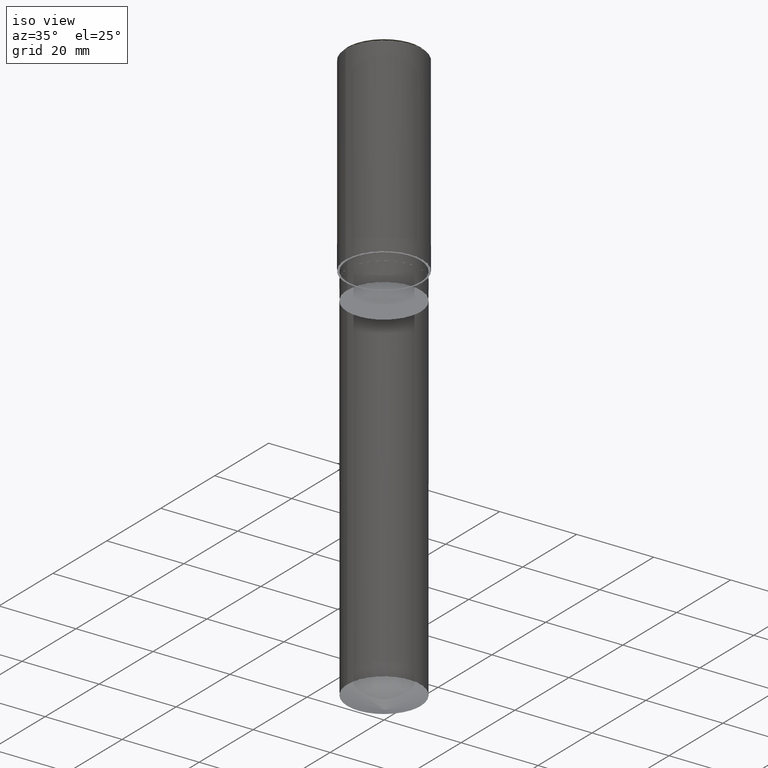
[diagram: clean part render]
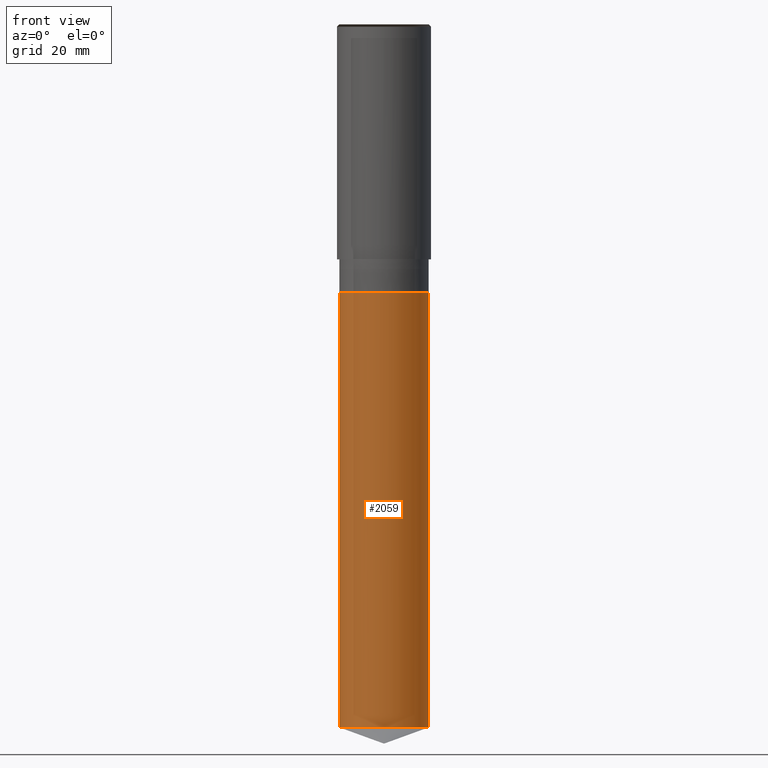
[diagram: tour spotlight — one face highlighted and labeled with its STEP entity id]
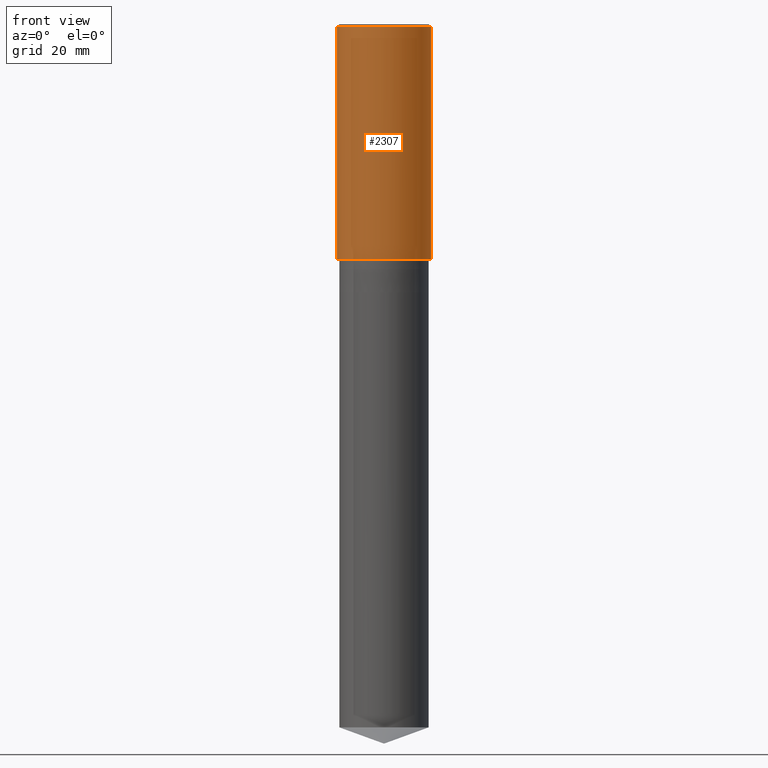
[diagram: tour spotlight — one face highlighted and labeled with its STEP entity id]
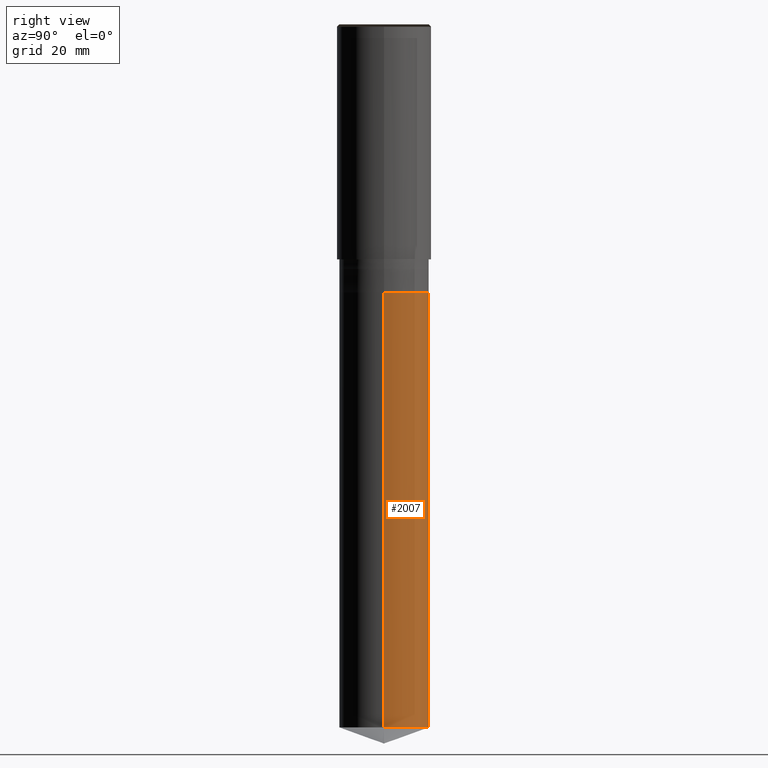
[diagram: tour spotlight — one face highlighted and labeled with its STEP entity id]
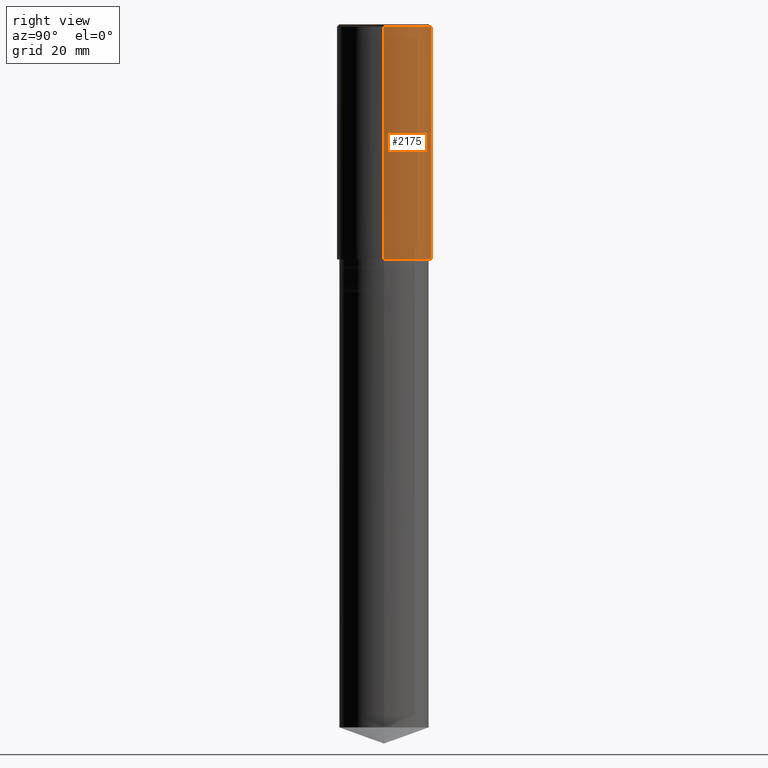
[diagram: tour spotlight — one face highlighted and labeled with its STEP entity id]
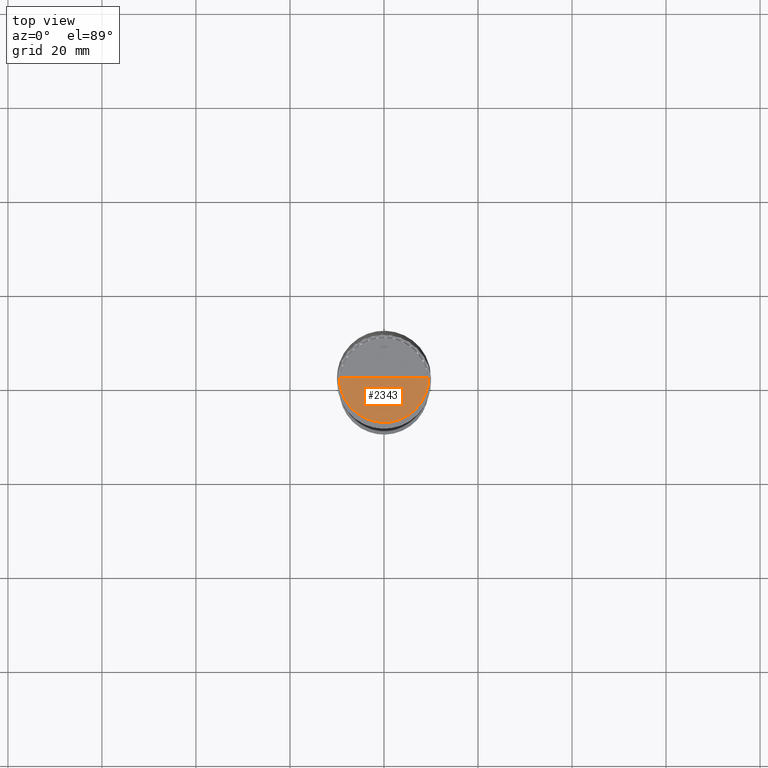
[diagram: tour spotlight — one face highlighted and labeled with its STEP entity id]
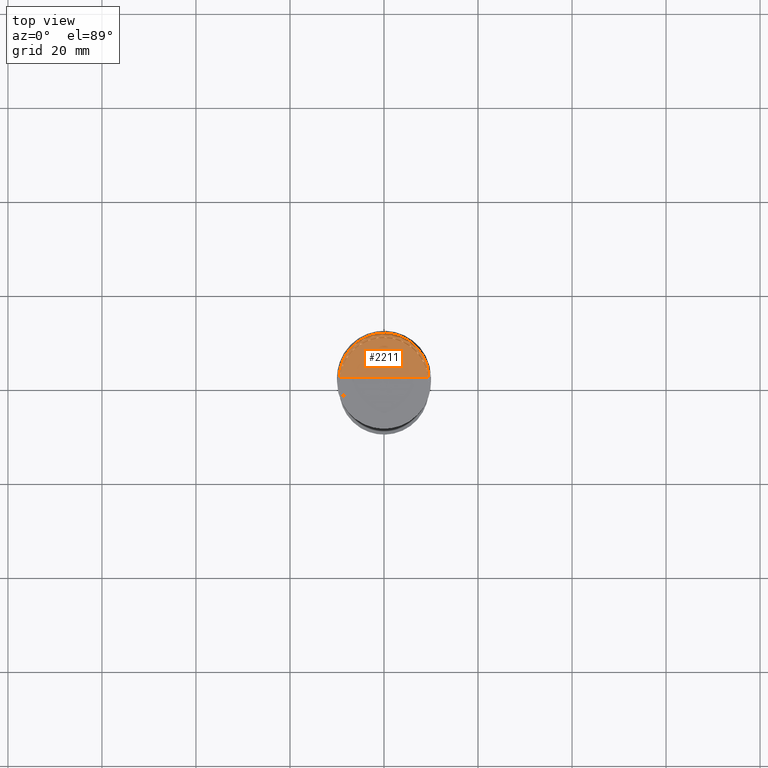
[diagram: tour spotlight — one face highlighted and labeled with its STEP entity id]
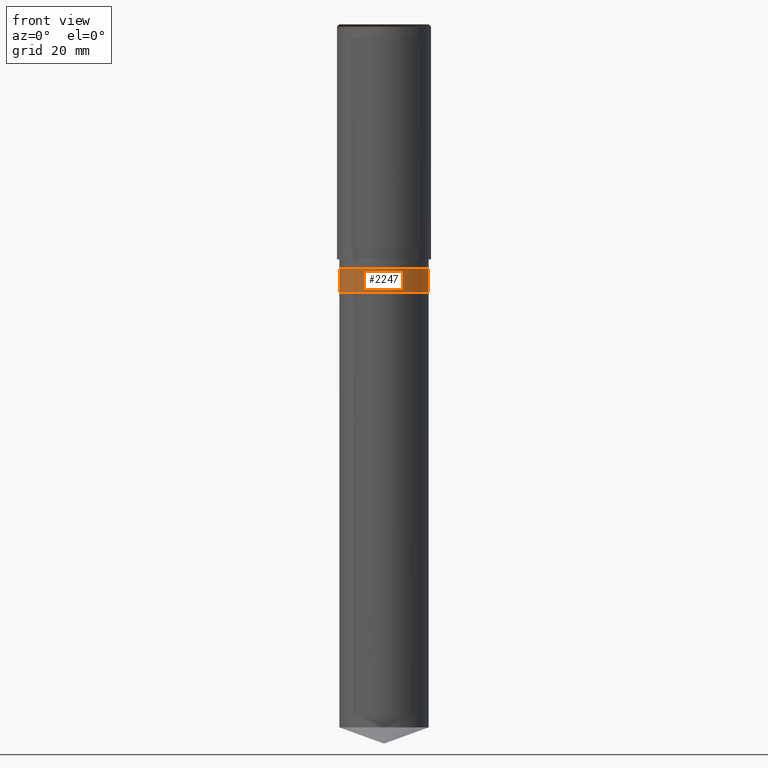
[diagram: tour spotlight — one face highlighted and labeled with its STEP entity id]
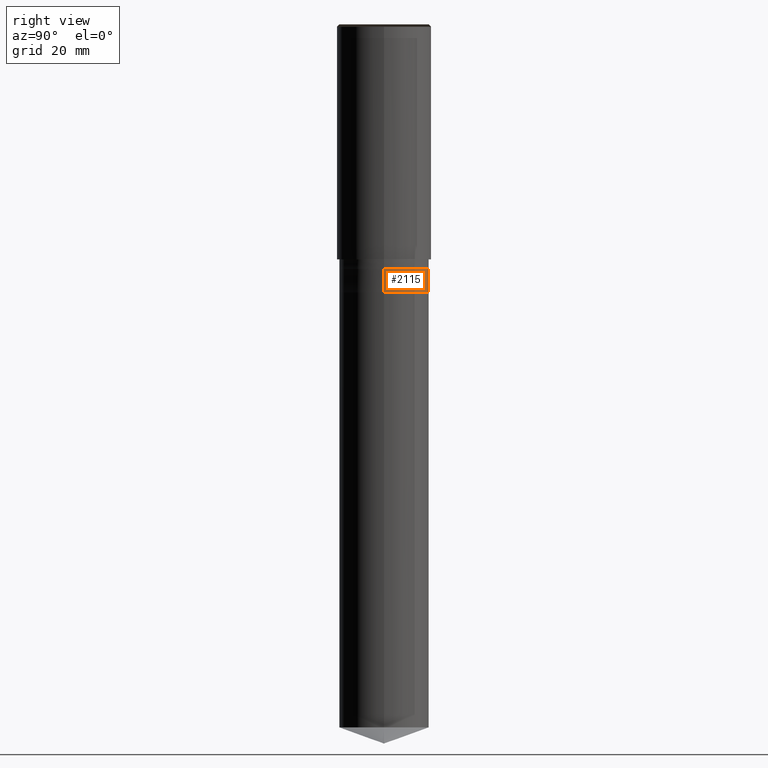
[diagram: tour spotlight — one face highlighted and labeled with its STEP entity id]
A machine part: a face-by-face anatomy tour. The part has 20 B-rep faces; the first image is the clean iso view, then the 8 largest visible faces are spotlighted one at a time (largest first), each with its STEP entity span.

Face 1 — front view, entity #2059. In plain terms, the highlighted face is a freeform B-spline surface patch.
Definition (entity closure, byte-faithful):
#1909=CARTESIAN_POINT('',(9.5,0.0,-99.542282774471));
#1913=CARTESIAN_POINT('',(-9.5,0.0,-99.542282774471));
#1914=CARTESIAN_POINT('',(9.5,0.0,-7.0));
#1918=CARTESIAN_POINT('',(-9.5,0.0,-7.0));
#1920=CARTESIAN_POINT('',(-9.5,-9.5,-99.542282774471));
#1921=CARTESIAN_POINT('',(0.0,-9.5,-99.542282774471));
#1922=CARTESIAN_POINT('',(9.5,-9.5,-99.542282774471));
#1923=CARTESIAN_POINT('',(-9.5,-9.5,-7.0));
#1924=CARTESIAN_POINT('',(0.0,-9.5,-7.0));
#1925=CARTESIAN_POINT('',(9.5,-9.5,-7.0));
#2040=(
BOUNDED_SURFACE()
B_SPLINE_SURFACE(1,2,(
(#1913,#1920,#1921,#1922,#1909),
(#1918,#1923,#1924,#1925,#1914)
), .UNSPECIFIED.,.F.,.F.,.F.)
B_SPLINE_SURFACE_WITH_KNOTS((2,2),(3,2,3),(
0.0,1.0),(
0.0,0.5,1.0), .UNSPECIFIED.)
GEOMETRIC_REPRESENTATION_ITEM()
RATIONAL_B_SPLINE_SURFACE(((1.0,0.707106781187,1.0,0.707106781187,1.0),
(1.0,0.707106781187,1.0,0.707106781187,1.0)
))
REPRESENTATION_ITEM('')
SURFACE()
);
#2041=(
BOUNDED_CURVE()
B_SPLINE_CURVE(2,(#1909,#1922,#1921,#1920,#1913),.UNSPECIFIED.,.F.,.F.)
B_SPLINE_CURVE_WITH_KNOTS((3,2,3),
(0.0,0.5,1.0),.UNSPECIFIED.)
CURVE()
GEOMETRIC_REPRESENTATION_ITEM()
RATIONAL_B_SPLINE_CURVE((1.0,0.707106781187,1.0,0.707106781187,1.0))
REPRESENTATION_ITEM('')
);
#2042=(
BOUNDED_CURVE()
B_SPLINE_CURVE(1,(#1913,#1918),.UNSPECIFIED.,.F.,.F.)
B_SPLINE_CURVE_WITH_KNOTS((2,2),
(0.0,1.0),.UNSPECIFIED.)
CURVE()
GEOMETRIC_REPRESENTATION_ITEM()
RATIONAL_B_SPLINE_CURVE((1.0,1.0))
REPRESENTATION_ITEM('')
);
#2043=(
BOUNDED_CURVE()
B_SPLINE_CURVE(2,(#1918,#1923,#1924,#1925,#1914),.UNSPECIFIED.,.F.,.F.)
B_SPLINE_CURVE_WITH_KNOTS((3,2,3),
(0.0,0.5,1.0),.UNSPECIFIED.)
CURVE()
GEOMETRIC_REPRESENTATION_ITEM()
RATIONAL_B_SPLINE_CURVE((1.0,0.707106781187,1.0,0.707106781187,1.0))
REPRESENTATION_ITEM('')
);
#2044=(
BOUNDED_CURVE()
B_SPLINE_CURVE(1,(#1914,#1909),.UNSPECIFIED.,.F.,.F.)
B_SPLINE_CURVE_WITH_KNOTS((2,2),
(0.0,1.0),.UNSPECIFIED.)
CURVE()
GEOMETRIC_REPRESENTATION_ITEM()
RATIONAL_B_SPLINE_CURVE((1.0,1.0))
REPRESENTATION_ITEM('')
);
#2045=VERTEX_POINT('',#1909);
#2046=VERTEX_POINT('',#1913);
#2047=VERTEX_POINT('',#1914);
#2048=VERTEX_POINT('',#1918);
#2049=EDGE_CURVE('',#2045,#2046,#2041,.T.);
#2050=EDGE_CURVE('',#2046,#2048,#2042,.T.);
#2051=EDGE_CURVE('',#2048,#2047,#2043,.T.);
#2052=EDGE_CURVE('',#2047,#2045,#2044,.T.);
#2053=ORIENTED_EDGE('',*,*,#2049,.T.);
#2054=ORIENTED_EDGE('',*,*,#2050,.T.);
#2055=ORIENTED_EDGE('',*,*,#2051,.T.);
#2056=ORIENTED_EDGE('',*,*,#2052,.T.);
#2057=EDGE_LOOP('',(#2053,#2054,#2055,#2056));
#2058=FACE_OUTER_BOUND('',#2057,.T.);
#2059=ADVANCED_FACE('',(#2058),#2040,.T.);

Face 2 — front view, entity #2307. In plain terms, the highlighted face is a freeform B-spline surface patch.
Definition (entity closure, byte-faithful):
#1936=CARTESIAN_POINT('',(10.0,0.0,0.0));
#1940=CARTESIAN_POINT('',(-10.0,0.0,0.0));
#1941=CARTESIAN_POINT('',(10.0,0.0,49.5));
#1945=CARTESIAN_POINT('',(-10.0,0.0,49.5));
#1958=CARTESIAN_POINT('',(-10.0,-10.0,0.0));
#1959=CARTESIAN_POINT('',(0.0,-10.0,0.0));
#1960=CARTESIAN_POINT('',(10.0,-10.0,0.0));
#1961=CARTESIAN_POINT('',(-10.0,-10.0,49.5));
#1962=CARTESIAN_POINT('',(0.0,-10.0,49.5));
#1963=CARTESIAN_POINT('',(10.0,-10.0,49.5));
#2288=(
BOUNDED_SURFACE()
B_SPLINE_SURFACE(1,2,(
(#1940,#1958,#1959,#1960,#1936),
(#1945,#1961,#1962,#1963,#1941)
), .UNSPECIFIED.,.F.,.F.,.F.)
B_SPLINE_SURFACE_WITH_KNOTS((2,2),(3,2,3),(
0.0,1.0),(
0.0,0.5,1.0), .UNSPECIFIED.)
GEOMETRIC_REPRESENTATION_ITEM()
RATIONAL_B_SPLINE_SURFACE(((1.0,0.707106781187,1.0,0.707106781187,1.0),
(1.0,0.707106781187,1.0,0.707106781187,1.0)
))
REPRESENTATION_ITEM('')
SURFACE()
);
#2289=(
BOUNDED_CURVE()
B_SPLINE_CURVE(2,(#1936,#1960,#1959,#1958,#1940),.UNSPECIFIED.,.F.,.F.)
B_SPLINE_CURVE_WITH_KNOTS((3,2,3),
(0.0,0.5,1.0),.UNSPECIFIED.)
CURVE()
GEOMETRIC_REPRESENTATION_ITEM()
RATIONAL_B_SPLINE_CURVE((1.0,0.707106781187,1.0,0.707106781187,1.0))
REPRESENTATION_ITEM('')
);
#2290=(
BOUNDED_CURVE()
B_SPLINE_CURVE(1,(#1940,#1945),.UNSPECIFIED.,.F.,.F.)
B_SPLINE_CURVE_WITH_KNOTS((2,2),
(0.0,1.0),.UNSPECIFIED.)
CURVE()
GEOMETRIC_REPRESENTATION_ITEM()
RATIONAL_B_SPLINE_CURVE((1.0,1.0))
REPRESENTATION_ITEM('')
);
#2291=(
BOUNDED_CURVE()
B_SPLINE_CURVE(2,(#1945,#1961,#1962,#1963,#1941),.UNSPECIFIED.,.F.,.F.)
B_SPLINE_CURVE_WITH_KNOTS((3,2,3),
(0.0,0.5,1.0),.UNSPECIFIED.)
CURVE()
GEOMETRIC_REPRESENTATION_ITEM()
RATIONAL_B_SPLINE_CURVE((1.0,0.707106781187,1.0,0.707106781187,1.0))
REPRESENTATION_ITEM('')
);
#2292=(
BOUNDED_CURVE()
B_SPLINE_CURVE(1,(#1941,#1936),.UNSPECIFIED.,.F.,.F.)
B_SPLINE_CURVE_WITH_KNOTS((2,2),
(0.0,1.0),.UNSPECIFIED.)
CURVE()
GEOMETRIC_REPRESENTATION_ITEM()
RATIONAL_B_SPLINE_CURVE((1.0,1.0))
REPRESENTATION_ITEM('')
);
#2293=VERTEX_POINT('',#1936);
#2294=VERTEX_POINT('',#1940);
#2295=VERTEX_POINT('',#1941);
#2296=VERTEX_POINT('',#1945);
#2297=EDGE_CURVE('',#2293,#2294,#2289,.T.);
#2298=EDGE_CURVE('',#2294,#2296,#2290,.T.);
#2299=EDGE_CURVE('',#2296,#2295,#2291,.T.);
#2300=EDGE_CURVE('',#2295,#2293,#2292,.T.);
#2301=ORIENTED_EDGE('',*,*,#2297,.T.);
#2302=ORIENTED_EDGE('',*,*,#2298,.T.);
#2303=ORIENTED_EDGE('',*,*,#2299,.T.);
#2304=ORIENTED_EDGE('',*,*,#2300,.T.);
#2305=EDGE_LOOP('',(#2301,#2302,#2303,#2304));
#2306=FACE_OUTER_BOUND('',#2305,.T.);
#2307=ADVANCED_FACE('',(#2306),#2288,.T.);

Face 3 — right view, entity #2007. In plain terms, the highlighted face is a freeform B-spline surface patch.
Definition (entity closure, byte-faithful):
#1909=CARTESIAN_POINT('',(9.5,0.0,-99.542282774471));
#1910=CARTESIAN_POINT('',(9.5,9.5,-99.542282774471));
#1911=CARTESIAN_POINT('',(0.0,9.5,-99.542282774471));
#1912=CARTESIAN_POINT('',(-9.5,9.5,-99.542282774471));
#1913=CARTESIAN_POINT('',(-9.5,0.0,-99.542282774471));
#1914=CARTESIAN_POINT('',(9.5,0.0,-7.0));
#1915=CARTESIAN_POINT('',(9.5,9.5,-7.0));
#1916=CARTESIAN_POINT('',(0.0,9.5,-7.0));
#1917=CARTESIAN_POINT('',(-9.5,9.5,-7.0));
#1918=CARTESIAN_POINT('',(-9.5,0.0,-7.0));
#1988=(
BOUNDED_SURFACE()
B_SPLINE_SURFACE(1,2,(
(#1909,#1910,#1911,#1912,#1913),
(#1914,#1915,#1916,#1917,#1918)
), .UNSPECIFIED.,.F.,.F.,.F.)
B_SPLINE_SURFACE_WITH_KNOTS((2,2),(3,2,3),(
0.0,1.0),(
0.0,0.5,1.0), .UNSPECIFIED.)
GEOMETRIC_REPRESENTATION_ITEM()
RATIONAL_B_SPLINE_SURFACE(((1.0,0.707106781187,1.0,0.707106781187,1.0),
(1.0,0.707106781187,1.0,0.707106781187,1.0)
))
REPRESENTATION_ITEM('')
SURFACE()
);
#1989=(
BOUNDED_CURVE()
B_SPLINE_CURVE(2,(#1913,#1912,#1911,#1910,#1909),.UNSPECIFIED.,.F.,.F.)
B_SPLINE_CURVE_WITH_KNOTS((3,2,3),
(0.0,0.5,1.0),.UNSPECIFIED.)
CURVE()
GEOMETRIC_REPRESENTATION_ITEM()
RATIONAL_B_SPLINE_CURVE((1.0,0.707106781187,1.0,0.707106781187,1.0))
REPRESENTATION_ITEM('')
);
#1990=(
BOUNDED_CURVE()
B_SPLINE_CURVE(1,(#1909,#1914),.UNSPECIFIED.,.F.,.F.)
B_SPLINE_CURVE_WITH_KNOTS((2,2),
(0.0,1.0),.UNSPECIFIED.)
CURVE()
GEOMETRIC_REPRESENTATION_ITEM()
RATIONAL_B_SPLINE_CURVE((1.0,1.0))
REPRESENTATION_ITEM('')
);
#1991=(
BOUNDED_CURVE()
B_SPLINE_CURVE(2,(#1914,#1915,#1916,#1917,#1918),.UNSPECIFIED.,.F.,.F.)
B_SPLINE_CURVE_WITH_KNOTS((3,2,3),
(0.0,0.5,1.0),.UNSPECIFIED.)
CURVE()
GEOMETRIC_REPRESENTATION_ITEM()
RATIONAL_B_SPLINE_CURVE((1.0,0.707106781187,1.0,0.707106781187,1.0))
REPRESENTATION_ITEM('')
);
#1992=(
BOUNDED_CURVE()
B_SPLINE_CURVE(1,(#1918,#1913),.UNSPECIFIED.,.F.,.F.)
B_SPLINE_CURVE_WITH_KNOTS((2,2),
(0.0,1.0),.UNSPECIFIED.)
CURVE()
GEOMETRIC_REPRESENTATION_ITEM()
RATIONAL_B_SPLINE_CURVE((1.0,1.0))
REPRESENTATION_ITEM('')
);
#1993=VERTEX_POINT('',#1909);
#1994=VERTEX_POINT('',#1913);
#1995=VERTEX_POINT('',#1914);
#1996=VERTEX_POINT('',#1918);
#1997=EDGE_CURVE('',#1994,#1993,#1989,.T.);
#1998=EDGE_CURVE('',#1993,#1995,#1990,.T.);
#1999=EDGE_CURVE('',#1995,#1996,#1991,.T.);
#2000=EDGE_CURVE('',#1996,#1994,#1992,.T.);
#2001=ORIENTED_EDGE('',*,*,#1997,.T.);
#2002=ORIENTED_EDGE('',*,*,#1998,.T.);
#2003=ORIENTED_EDGE('',*,*,#1999,.T.);
#2004=ORIENTED_EDGE('',*,*,#2000,.T.);
#2005=EDGE_LOOP('',(#2001,#2002,#2003,#2004));
#2006=FACE_OUTER_BOUND('',#2005,.T.);
#2007=ADVANCED_FACE('',(#2006),#1988,.T.);

Face 4 — right view, entity #2175. In plain terms, the highlighted face is a freeform B-spline surface patch.
Definition (entity closure, byte-faithful):
#1936=CARTESIAN_POINT('',(10.0,0.0,0.0));
#1937=CARTESIAN_POINT('',(10.0,10.0,0.0));
#1938=CARTESIAN_POINT('',(0.0,10.0,0.0));
#1939=CARTESIAN_POINT('',(-10.0,10.0,0.0));
#1940=CARTESIAN_POINT('',(-10.0,0.0,0.0));
#1941=CARTESIAN_POINT('',(10.0,0.0,49.5));
#1942=CARTESIAN_POINT('',(10.0,10.0,49.5));
#1943=CARTESIAN_POINT('',(0.0,10.0,49.5));
#1944=CARTESIAN_POINT('',(-10.0,10.0,49.5));
#1945=CARTESIAN_POINT('',(-10.0,0.0,49.5));
#2156=(
BOUNDED_SURFACE()
B_SPLINE_SURFACE(1,2,(
(#1936,#1937,#1938,#1939,#1940),
(#1941,#1942,#1943,#1944,#1945)
), .UNSPECIFIED.,.F.,.F.,.F.)
B_SPLINE_SURFACE_WITH_KNOTS((2,2),(3,2,3),(
0.0,1.0),(
0.0,0.5,1.0), .UNSPECIFIED.)
GEOMETRIC_REPRESENTATION_ITEM()
RATIONAL_B_SPLINE_SURFACE(((1.0,0.707106781187,1.0,0.707106781187,1.0),
(1.0,0.707106781187,1.0,0.707106781187,1.0)
))
REPRESENTATION_ITEM('')
SURFACE()
);
#2157=(
BOUNDED_CURVE()
B_SPLINE_CURVE(2,(#1940,#1939,#1938,#1937,#1936),.UNSPECIFIED.,.F.,.F.)
B_SPLINE_CURVE_WITH_KNOTS((3,2,3),
(0.0,0.5,1.0),.UNSPECIFIED.)
CURVE()
GEOMETRIC_REPRESENTATION_ITEM()
RATIONAL_B_SPLINE_CURVE((1.0,0.707106781187,1.0,0.707106781187,1.0))
REPRESENTATION_ITEM('')
);
#2158=(
BOUNDED_CURVE()
B_SPLINE_CURVE(1,(#1936,#1941),.UNSPECIFIED.,.F.,.F.)
B_SPLINE_CURVE_WITH_KNOTS((2,2),
(0.0,1.0),.UNSPECIFIED.)
CURVE()
GEOMETRIC_REPRESENTATION_ITEM()
RATIONAL_B_SPLINE_CURVE((1.0,1.0))
REPRESENTATION_ITEM('')
);
#2159=(
BOUNDED_CURVE()
B_SPLINE_CURVE(2,(#1941,#1942,#1943,#1944,#1945),.UNSPECIFIED.,.F.,.F.)
B_SPLINE_CURVE_WITH_KNOTS((3,2,3),
(0.0,0.5,1.0),.UNSPECIFIED.)
CURVE()
GEOMETRIC_REPRESENTATION_ITEM()
RATIONAL_B_SPLINE_CURVE((1.0,0.707106781187,1.0,0.707106781187,1.0))
REPRESENTATION_ITEM('')
);
#2160=(
BOUNDED_CURVE()
B_SPLINE_CURVE(1,(#1945,#1940),.UNSPECIFIED.,.F.,.F.)
B_SPLINE_CURVE_WITH_KNOTS((2,2),
(0.0,1.0),.UNSPECIFIED.)
CURVE()
GEOMETRIC_REPRESENTATION_ITEM()
RATIONAL_B_SPLINE_CURVE((1.0,1.0))
REPRESENTATION_ITEM('')
);
#2161=VERTEX_POINT('',#1936);
#2162=VERTEX_POINT('',#1940);
#2163=VERTEX_POINT('',#1941);
#2164=VERTEX_POINT('',#1945);
#2165=EDGE_CURVE('',#2162,#2161,#2157,.T.);
#2166=EDGE_CURVE('',#2161,#2163,#2158,.T.);
#2167=EDGE_CURVE('',#2163,#2164,#2159,.T.);
#2168=EDGE_CURVE('',#2164,#2162,#2160,.T.);
#2169=ORIENTED_EDGE('',*,*,#2165,.T.);
#2170=ORIENTED_EDGE('',*,*,#2166,.T.);
#2171=ORIENTED_EDGE('',*,*,#2167,.T.);
#2172=ORIENTED_EDGE('',*,*,#2168,.T.);
#2173=EDGE_LOOP('',(#2169,#2170,#2171,#2172));
#2174=FACE_OUTER_BOUND('',#2173,.T.);
#2175=ADVANCED_FACE('',(#2174),#2156,.T.);

Face 5 — top view, entity #2343. In plain terms, the highlighted face is a freeform B-spline surface patch.
Definition (entity closure, byte-faithful):
#1946=CARTESIAN_POINT('',(9.5,0.0,50.0));
#1950=CARTESIAN_POINT('',(-9.5,0.0,50.0));
#1951=CARTESIAN_POINT('',(0.0,0.0,50.0));
#1964=CARTESIAN_POINT('',(-9.5,-9.5,50.0));
#1965=CARTESIAN_POINT('',(0.0,-9.5,50.0));
#1966=CARTESIAN_POINT('',(9.5,-9.5,50.0));
#2328=(
BOUNDED_SURFACE()
B_SPLINE_SURFACE(1,2,(
(#1950,#1964,#1965,#1966,#1946),
(#1951,#1951,#1951,#1951,#1951)
), .UNSPECIFIED.,.F.,.F.,.F.)
B_SPLINE_SURFACE_WITH_KNOTS((2,2),(3,2,3),(
0.0,1.0),(
0.0,0.5,1.0), .UNSPECIFIED.)
GEOMETRIC_REPRESENTATION_ITEM()
RATIONAL_B_SPLINE_SURFACE(((1.0,0.707106781187,1.0,0.707106781187,1.0),
(1.0,0.707106781187,1.0,0.707106781187,1.0)
))
REPRESENTATION_ITEM('')
SURFACE()
);
#2329=(
BOUNDED_CURVE()
B_SPLINE_CURVE(2,(#1946,#1966,#1965,#1964,#1950),.UNSPECIFIED.,.F.,.F.)
B_SPLINE_CURVE_WITH_KNOTS((3,2,3),
(0.0,0.5,1.0),.UNSPECIFIED.)
CURVE()
GEOMETRIC_REPRESENTATION_ITEM()
RATIONAL_B_SPLINE_CURVE((1.0,0.707106781187,1.0,0.707106781187,1.0))
REPRESENTATION_ITEM('')
);
#2330=(
BOUNDED_CURVE()
B_SPLINE_CURVE(1,(#1950,#1951),.UNSPECIFIED.,.F.,.F.)
B_SPLINE_CURVE_WITH_KNOTS((2,2),
(0.0,1.0),.UNSPECIFIED.)
CURVE()
GEOMETRIC_REPRESENTATION_ITEM()
RATIONAL_B_SPLINE_CURVE((1.0,1.0))
REPRESENTATION_ITEM('')
);
#2331=(
BOUNDED_CURVE()
B_SPLINE_CURVE(1,(#1951,#1946),.UNSPECIFIED.,.F.,.F.)
B_SPLINE_CURVE_WITH_KNOTS((2,2),
(0.0,1.0),.UNSPECIFIED.)
CURVE()
GEOMETRIC_REPRESENTATION_ITEM()
RATIONAL_B_SPLINE_CURVE((1.0,1.0))
REPRESENTATION_ITEM('')
);
#2332=VERTEX_POINT('',#1946);
#2333=VERTEX_POINT('',#1950);
#2334=VERTEX_POINT('',#1951);
#2335=EDGE_CURVE('',#2332,#2333,#2329,.T.);
#2336=EDGE_CURVE('',#2333,#2334,#2330,.T.);
#2337=EDGE_CURVE('',#2334,#2332,#2331,.T.);
#2338=ORIENTED_EDGE('',*,*,#2335,.T.);
#2339=ORIENTED_EDGE('',*,*,#2336,.T.);
#2340=ORIENTED_EDGE('',*,*,#2337,.T.);
#2341=EDGE_LOOP('',(#2338,#2339,#2340));
#2342=FACE_OUTER_BOUND('',#2341,.T.);
#2343=ADVANCED_FACE('',(#2342),#2328,.T.);

Face 6 — top view, entity #2211. In plain terms, the highlighted face is a freeform B-spline surface patch.
Definition (entity closure, byte-faithful):
#1946=CARTESIAN_POINT('',(9.5,0.0,50.0));
#1947=CARTESIAN_POINT('',(9.5,9.5,50.0));
#1948=CARTESIAN_POINT('',(0.0,9.5,50.0));
#1949=CARTESIAN_POINT('',(-9.5,9.5,50.0));
#1950=CARTESIAN_POINT('',(-9.5,0.0,50.0));
#1951=CARTESIAN_POINT('',(0.0,0.0,50.0));
#2196=(
BOUNDED_SURFACE()
B_SPLINE_SURFACE(1,2,(
(#1946,#1947,#1948,#1949,#1950),
(#1951,#1951,#1951,#1951,#1951)
), .UNSPECIFIED.,.F.,.F.,.F.)
B_SPLINE_SURFACE_WITH_KNOTS((2,2),(3,2,3),(
0.0,1.0),(
0.0,0.5,1.0), .UNSPECIFIED.)
GEOMETRIC_REPRESENTATION_ITEM()
RATIONAL_B_SPLINE_SURFACE(((1.0,0.707106781187,1.0,0.707106781187,1.0),
(1.0,0.707106781187,1.0,0.707106781187,1.0)
))
REPRESENTATION_ITEM('')
SURFACE()
);
#2197=(
BOUNDED_CURVE()
B_SPLINE_CURVE(2,(#1950,#1949,#1948,#1947,#1946),.UNSPECIFIED.,.F.,.F.)
B_SPLINE_CURVE_WITH_KNOTS((3,2,3),
(0.0,0.5,1.0),.UNSPECIFIED.)
CURVE()
GEOMETRIC_REPRESENTATION_ITEM()
RATIONAL_B_SPLINE_CURVE((1.0,0.707106781187,1.0,0.707106781187,1.0))
REPRESENTATION_ITEM('')
);
#2198=(
BOUNDED_CURVE()
B_SPLINE_CURVE(1,(#1946,#1951),.UNSPECIFIED.,.F.,.F.)
B_SPLINE_CURVE_WITH_KNOTS((2,2),
(0.0,1.0),.UNSPECIFIED.)
CURVE()
GEOMETRIC_REPRESENTATION_ITEM()
RATIONAL_B_SPLINE_CURVE((1.0,1.0))
REPRESENTATION_ITEM('')
);
#2199=(
BOUNDED_CURVE()
B_SPLINE_CURVE(1,(#1951,#1950),.UNSPECIFIED.,.F.,.F.)
B_SPLINE_CURVE_WITH_KNOTS((2,2),
(0.0,1.0),.UNSPECIFIED.)
CURVE()
GEOMETRIC_REPRESENTATION_ITEM()
RATIONAL_B_SPLINE_CURVE((1.0,1.0))
REPRESENTATION_ITEM('')
);
#2200=VERTEX_POINT('',#1946);
#2201=VERTEX_POINT('',#1950);
#2202=VERTEX_POINT('',#1951);
#2203=EDGE_CURVE('',#2201,#2200,#2197,.T.);
#2204=EDGE_CURVE('',#2200,#2202,#2198,.T.);
#2205=EDGE_CURVE('',#2202,#2201,#2199,.T.);
#2206=ORIENTED_EDGE('',*,*,#2203,.T.);
#2207=ORIENTED_EDGE('',*,*,#2204,.T.);
#2208=ORIENTED_EDGE('',*,*,#2205,.T.);
#2209=EDGE_LOOP('',(#2206,#2207,#2208));
#2210=FACE_OUTER_BOUND('',#2209,.T.);
#2211=ADVANCED_FACE('',(#2210),#2196,.T.);

Face 7 — front view, entity #2247. In plain terms, the highlighted face is a freeform B-spline surface patch.
Definition (entity closure, byte-faithful):
#1914=CARTESIAN_POINT('',(9.5,0.0,-7.0));
#1918=CARTESIAN_POINT('',(-9.5,0.0,-7.0));
#1923=CARTESIAN_POINT('',(-9.5,-9.5,-7.0));
#1924=CARTESIAN_POINT('',(0.0,-9.5,-7.0));
#1925=CARTESIAN_POINT('',(9.5,-9.5,-7.0));
#1926=CARTESIAN_POINT('',(9.5,0.0,-2.0));
#1930=CARTESIAN_POINT('',(-9.5,0.0,-2.0));
#1952=CARTESIAN_POINT('',(-9.5,-9.5,-2.0));
#1953=CARTESIAN_POINT('',(0.0,-9.5,-2.0));
#1954=CARTESIAN_POINT('',(9.5,-9.5,-2.0));
#2228=(
BOUNDED_SURFACE()
B_SPLINE_SURFACE(1,2,(
(#1918,#1923,#1924,#1925,#1914),
(#1930,#1952,#1953,#1954,#1926)
), .UNSPECIFIED.,.F.,.F.,.F.)
B_SPLINE_SURFACE_WITH_KNOTS((2,2),(3,2,3),(
0.0,1.0),(
0.0,0.5,1.0), .UNSPECIFIED.)
GEOMETRIC_REPRESENTATION_ITEM()
RATIONAL_B_SPLINE_SURFACE(((1.0,0.707106781187,1.0,0.707106781187,1.0),
(1.0,0.707106781187,1.0,0.707106781187,1.0)
))
REPRESENTATION_ITEM('')
SURFACE()
);
#2229=(
BOUNDED_CURVE()
B_SPLINE_CURVE(2,(#1914,#1925,#1924,#1923,#1918),.UNSPECIFIED.,.F.,.F.)
B_SPLINE_CURVE_WITH_KNOTS((3,2,3),
(0.0,0.5,1.0),.UNSPECIFIED.)
CURVE()
GEOMETRIC_REPRESENTATION_ITEM()
RATIONAL_B_SPLINE_CURVE((1.0,0.707106781187,1.0,0.707106781187,1.0))
REPRESENTATION_ITEM('')
);
#2230=(
BOUNDED_CURVE()
B_SPLINE_CURVE(1,(#1918,#1930),.UNSPECIFIED.,.F.,.F.)
B_SPLINE_CURVE_WITH_KNOTS((2,2),
(0.0,1.0),.UNSPECIFIED.)
CURVE()
GEOMETRIC_REPRESENTATION_ITEM()
RATIONAL_B_SPLINE_CURVE((1.0,1.0))
REPRESENTATION_ITEM('')
);
#2231=(
BOUNDED_CURVE()
B_SPLINE_CURVE(2,(#1930,#1952,#1953,#1954,#1926),.UNSPECIFIED.,.F.,.F.)
B_SPLINE_CURVE_WITH_KNOTS((3,2,3),
(0.0,0.5,1.0),.UNSPECIFIED.)
CURVE()
GEOMETRIC_REPRESENTATION_ITEM()
RATIONAL_B_SPLINE_CURVE((1.0,0.707106781187,1.0,0.707106781187,1.0))
REPRESENTATION_ITEM('')
);
#2232=(
BOUNDED_CURVE()
B_SPLINE_CURVE(1,(#1926,#1914),.UNSPECIFIED.,.F.,.F.)
B_SPLINE_CURVE_WITH_KNOTS((2,2),
(0.0,1.0),.UNSPECIFIED.)
CURVE()
GEOMETRIC_REPRESENTATION_ITEM()
RATIONAL_B_SPLINE_CURVE((1.0,1.0))
REPRESENTATION_ITEM('')
);
#2233=VERTEX_POINT('',#1914);
#2234=VERTEX_POINT('',#1918);
#2235=VERTEX_POINT('',#1926);
#2236=VERTEX_POINT('',#1930);
#2237=EDGE_CURVE('',#2233,#2234,#2229,.T.);
#2238=EDGE_CURVE('',#2234,#2236,#2230,.T.);
#2239=EDGE_CURVE('',#2236,#2235,#2231,.T.);
#2240=EDGE_CURVE('',#2235,#2233,#2232,.T.);
#2241=ORIENTED_EDGE('',*,*,#2237,.T.);
#2242=ORIENTED_EDGE('',*,*,#2238,.T.);
#2243=ORIENTED_EDGE('',*,*,#2239,.T.);
#2244=ORIENTED_EDGE('',*,*,#2240,.T.);
#2245=EDGE_LOOP('',(#2241,#2242,#2243,#2244));
#2246=FACE_OUTER_BOUND('',#2245,.T.);
#2247=ADVANCED_FACE('',(#2246),#2228,.T.);

Face 8 — right view, entity #2115. In plain terms, the highlighted face is a freeform B-spline surface patch.
Definition (entity closure, byte-faithful):
#1914=CARTESIAN_POINT('',(9.5,0.0,-7.0));
#1915=CARTESIAN_POINT('',(9.5,9.5,-7.0));
#1916=CARTESIAN_POINT('',(0.0,9.5,-7.0));
#1917=CARTESIAN_POINT('',(-9.5,9.5,-7.0));
#1918=CARTESIAN_POINT('',(-9.5,0.0,-7.0));
#1926=CARTESIAN_POINT('',(9.5,0.0,-2.0));
#1927=CARTESIAN_POINT('',(9.5,9.5,-2.0));
#1928=CARTESIAN_POINT('',(0.0,9.5,-2.0));
#1929=CARTESIAN_POINT('',(-9.5,9.5,-2.0));
#1930=CARTESIAN_POINT('',(-9.5,0.0,-2.0));
#2096=(
BOUNDED_SURFACE()
B_SPLINE_SURFACE(1,2,(
(#1914,#1915,#1916,#1917,#1918),
(#1926,#1927,#1928,#1929,#1930)
), .UNSPECIFIED.,.F.,.F.,.F.)
B_SPLINE_SURFACE_WITH_KNOTS((2,2),(3,2,3),(
0.0,1.0),(
0.0,0.5,1.0), .UNSPECIFIED.)
GEOMETRIC_REPRESENTATION_ITEM()
RATIONAL_B_SPLINE_SURFACE(((1.0,0.707106781187,1.0,0.707106781187,1.0),
(1.0,0.707106781187,1.0,0.707106781187,1.0)
))
REPRESENTATION_ITEM('')
SURFACE()
);
#2097=(
BOUNDED_CURVE()
B_SPLINE_CURVE(2,(#1918,#1917,#1916,#1915,#1914),.UNSPECIFIED.,.F.,.F.)
B_SPLINE_CURVE_WITH_KNOTS((3,2,3),
(0.0,0.5,1.0),.UNSPECIFIED.)
CURVE()
GEOMETRIC_REPRESENTATION_ITEM()
RATIONAL_B_SPLINE_CURVE((1.0,0.707106781187,1.0,0.707106781187,1.0))
REPRESENTATION_ITEM('')
);
#2098=(
BOUNDED_CURVE()
B_SPLINE_CURVE(1,(#1914,#1926),.UNSPECIFIED.,.F.,.F.)
B_SPLINE_CURVE_WITH_KNOTS((2,2),
(0.0,1.0),.UNSPECIFIED.)
CURVE()
GEOMETRIC_REPRESENTATION_ITEM()
RATIONAL_B_SPLINE_CURVE((1.0,1.0))
REPRESENTATION_ITEM('')
);
#2099=(
BOUNDED_CURVE()
B_SPLINE_CURVE(2,(#1926,#1927,#1928,#1929,#1930),.UNSPECIFIED.,.F.,.F.)
B_SPLINE_CURVE_WITH_KNOTS((3,2,3),
(0.0,0.5,1.0),.UNSPECIFIED.)
CURVE()
GEOMETRIC_REPRESENTATION_ITEM()
RATIONAL_B_SPLINE_CURVE((1.0,0.707106781187,1.0,0.707106781187,1.0))
REPRESENTATION_ITEM('')
);
#2100=(
BOUNDED_CURVE()
B_SPLINE_CURVE(1,(#1930,#1918),.UNSPECIFIED.,.F.,.F.)
B_SPLINE_CURVE_WITH_KNOTS((2,2),
(0.0,1.0),.UNSPECIFIED.)
CURVE()
GEOMETRIC_REPRESENTATION_ITEM()
RATIONAL_B_SPLINE_CURVE((1.0,1.0))
REPRESENTATION_ITEM('')
);
#2101=VERTEX_POINT('',#1914);
#2102=VERTEX_POINT('',#1918);
#2103=VERTEX_POINT('',#1926);
#2104=VERTEX_POINT('',#1930);
#2105=EDGE_CURVE('',#2102,#2101,#2097,.T.);
#2106=EDGE_CURVE('',#2101,#2103,#2098,.T.);
#2107=EDGE_CURVE('',#2103,#2104,#2099,.T.);
#2108=EDGE_CURVE('',#2104,#2102,#2100,.T.);
#2109=ORIENTED_EDGE('',*,*,#2105,.T.);
#2110=ORIENTED_EDGE('',*,*,#2106,.T.);
#2111=ORIENTED_EDGE('',*,*,#2107,.T.);
#2112=ORIENTED_EDGE('',*,*,#2108,.T.);
#2113=EDGE_LOOP('',(#2109,#2110,#2111,#2112));
#2114=FACE_OUTER_BOUND('',#2113,.T.);
#2115=ADVANCED_FACE('',(#2114),#2096,.T.);